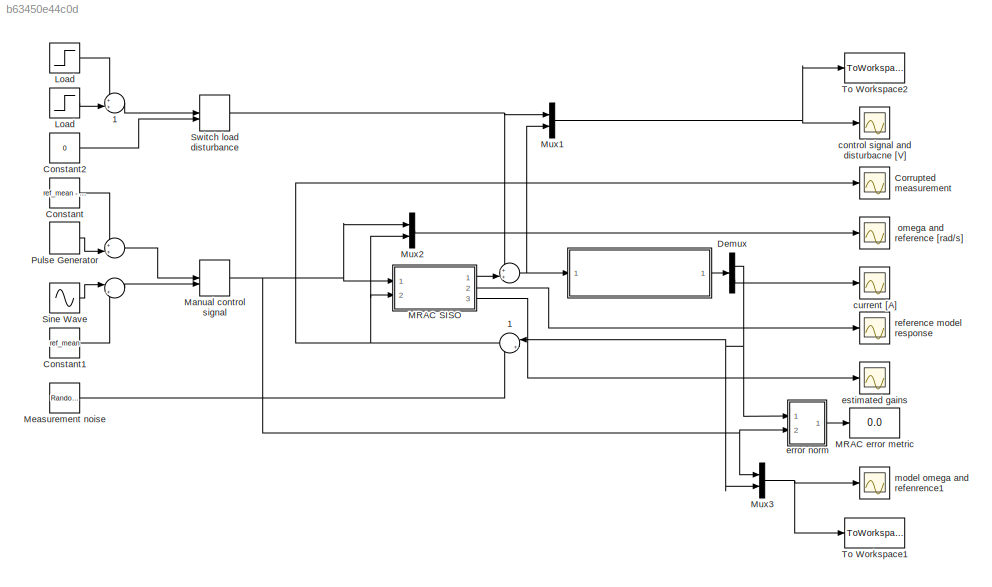
MODEL slx_b63450e44c0d
KIND model
CONFIG AbsTol = auto
CONFIG FixedStep = auto
CONFIG MaxStep = auto
CONFIG MinStep = auto
CONFIG RelTol = 1e-3
CONFIG SampleTimeConstraint = Unconstrained
CONFIG Solver = VariableStepAuto
CONFIG SolverMode = Auto
CONFIG SolverName = VariableStepAuto
CONFIG StartTime = 0.0
CONFIG StopTime = 30
BLOCK [Sum]  
  IconShape = round
  InputSameDT = off
  Inputs = ++|
  OutDataTypeStr = Inherit: Inherit via internal rule
  Ports = [2, 1]
  SaturateOnIntegerOverflow = off
BLOCK [ModelReference]    
  ModelNameDialog = rotor_model_c.slx
  ModelReferenceVersion = 1.30
  Ports = [1, 1]
  Variant = off
BLOCK [Sum]       
  IconShape = round
  InputSameDT = off
  Inputs = ++|
  OutDataTypeStr = Inherit: Inherit via internal rule
  Ports = [2, 1]
  SaturateOnIntegerOverflow = off
BLOCK [Sum]        
  IconShape = round
  InputSameDT = off
  Inputs = |++
  OutDataTypeStr = Inherit: Inherit via internal rule
  Ports = [2, 1]
  SaturateOnIntegerOverflow = off
BLOCK [Sum]        1
  IconShape = round
  InputSameDT = off
  Inputs = |++
  OutDataTypeStr = Inherit: Inherit via internal rule
  Ports = [2, 1]
  SaturateOnIntegerOverflow = off
BLOCK [Sum]       1
  IconShape = round
  InputSameDT = off
  Inputs = ++|
  OutDataTypeStr = Inherit: Inherit via internal rule
  Ports = [2, 1]
  SaturateOnIntegerOverflow = off
BLOCK [Scope]  omega and reference [rad//s]
  Ports = [1]
  ScopeSpecificationString = Simulink.scopes.TimeScopeBlockCfg('CurrentConfiguration', extmgr.ConfigurationSet(extmgr.Configuration('Core','General UI',true),extmgr.Configuration('Core','Source UI',true),extmgr.Configuration('Sources','WiredSimulink',true,'DataLoggingVariableName','ScopeData1'),extmgr.Configuration('Visuals','Time Domain',true,'SerializedDisplays',{struct('MinYLimReal','-365.30622','MaxYLimReal','3232.0204','...<+1405ch>
BLOCK [Constant] Constant
  Value = ref_mean - ref_amp
BLOCK [Constant] Constant1
  Value = ref_mean
BLOCK [Constant] Constant2
  Value = 0
BLOCK [Scope] Corrupted measurement
  Ports = [1]
  ScopeSpecificationString = C++SS(StrPVP('SaveName','ScopeData2'),StrPVP('LimitDataPoints','on'),StrPVP('DataFormat','Array'),StrPVP('Decimation','1'),StrPVP('BlockParamSampleInput','off'))
BLOCK [Demux] Demux
  DisplayOption = bar
  Outputs = 2
  Ports = [1, 2]
BLOCK [Step] Load
  After = -load_amp
  SampleTime = 0
  Time = load_finish
BLOCK [Step] Load 
  After = load_amp
  SampleTime = 0
  Time = load_start
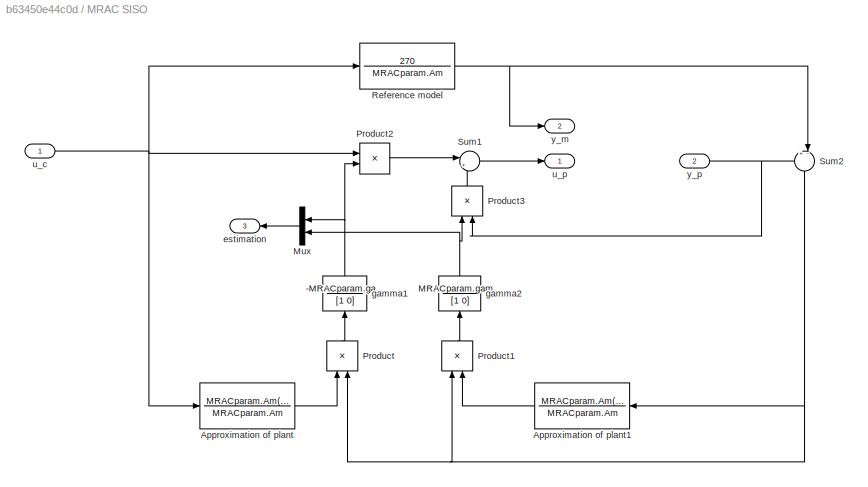
BLOCK [SubSystem] MRAC SISO
  Ports = [2, 3]
  RequestExecContextInheritance = off
  Variant = off
BLOCK [TransferFcn] MRAC SISO/ gamma2
  Denominator = [1 0]
  Numerator = MRACparam.gamma(2)
BLOCK [TransferFcn] MRAC SISO/Approximation of plant
  Denominator = MRACparam.Am
  Numerator = MRACparam.Am(2:end)
BLOCK [TransferFcn] MRAC SISO/Approximation of plant1
  Denominator = MRACparam.Am
  Numerator = MRACparam.Am(2:end)
BLOCK [Mux] MRAC SISO/Mux
  DisplayOption = bar
  Inputs = 2
  Ports = [2, 1]
BLOCK [Product] MRAC SISO/Product
  InputSameDT = off
  OutDataTypeStr = Inherit: Inherit via internal rule
  Ports = [2, 1]
  RndMeth = Floor
  SaturateOnIntegerOverflow = off
BLOCK [Product] MRAC SISO/Product1
  InputSameDT = off
  OutDataTypeStr = Inherit: Inherit via internal rule
  Ports = [2, 1]
  RndMeth = Floor
  SaturateOnIntegerOverflow = off
BLOCK [Product] MRAC SISO/Product2
  InputSameDT = off
  OutDataTypeStr = Inherit: Inherit via internal rule
  Ports = [2, 1]
  RndMeth = Floor
  SaturateOnIntegerOverflow = off
BLOCK [Product] MRAC SISO/Product3
  InputSameDT = off
  OutDataTypeStr = Inherit: Inherit via internal rule
  Ports = [2, 1]
  RndMeth = Floor
  SaturateOnIntegerOverflow = off
BLOCK [TransferFcn] MRAC SISO/Reference model
  Denominator = MRACparam.Am
  Numerator = 270
BLOCK [Sum] MRAC SISO/Sum1
  IconShape = round
  InputSameDT = off
  Inputs = |+-
  OutDataTypeStr = Inherit: Inherit via internal rule
  Ports = [2, 1]
  SaturateOnIntegerOverflow = off
BLOCK [Sum] MRAC SISO/Sum2
  IconShape = round
  InputSameDT = off
  Inputs = +-|
  OutDataTypeStr = Inherit: Inherit via internal rule
  Ports = [2, 1]
  SaturateOnIntegerOverflow = off
BLOCK [Outport] MRAC SISO/estimation
  IconDisplay = Port number
  Port = 3
BLOCK [TransferFcn] MRAC SISO/gamma1
  Denominator = [1 0]
  Numerator = -MRACparam.gamma(1)
BLOCK [Inport] MRAC SISO/u_c
  IconDisplay = Port number
BLOCK [Outport] MRAC SISO/u_p
  IconDisplay = Port number
BLOCK [Outport] MRAC SISO/y_m
  IconDisplay = Port number
  Port = 2
BLOCK [Inport] MRAC SISO/y_p
  IconDisplay = Port number
  Port = 2
BLOCK [Display] MRAC error metric
  Decimation = 1
  Ports = [1]
BLOCK [ManualSwitch] Manual control signal
BLOCK [RandomNumber] Measurement noise
  SampleTime = rotor_h
  Variance = measurement_variance
BLOCK [Mux] Mux1
  DisplayOption = bar
  Inputs = 2
  Ports = [2, 1]
BLOCK [Mux] Mux2
  DisplayOption = bar
  Inputs = 2
  Ports = [2, 1]
BLOCK [Mux] Mux3
  DisplayOption = bar
  Inputs = 2
  Ports = [2, 1]
BLOCK [DiscretePulseGenerator] Pulse Generator
  Amplitude = ref_amp*2
  Period = pulse_period
  Ports = [0, 1]
  PulseType = Time based
  PulseWidth = 50
BLOCK [Sin] Sine Wave
  Amplitude = 200
  Frequency = sinusoid_frequency
  Ports = [0, 1]
  SampleTime = 0
BLOCK [ManualSwitch] Switch load disturbance
  CurrentSetting = 0
BLOCK [ToWorkspace] To Workspace1
  FixptAsFi = on
  MaxDataPoints = inf
  Ports = [1]
  SampleTime = -1
  Save2DSignal = 3-D array (concatenate along third dimension)
  SaveFormat = Timeseries
  VariableName = omegaref
BLOCK [ToWorkspace] To Workspace2
  FixptAsFi = on
  MaxDataPoints = inf
  Ports = [1]
  SampleTime = -1
  Save2DSignal = 3-D array (concatenate along third dimension)
  SaveFormat = Timeseries
  VariableName = controlsig
BLOCK [Scope] control signal and disturbacne  [V]
  Ports = [1]
  ScopeSpecificationString = C++SS(StrPVP('SaveName','ScopeData3'),StrPVP('LimitDataPoints','on'),StrPVP('DataFormat','Array'),StrPVP('Decimation','1'),StrPVP('BlockParamSampleInput','off'))
BLOCK [Scope] current [A]   
  Ports = [1]
  ScopeSpecificationString = Simulink.scopes.TimeScopeBlockCfg('CurrentConfiguration', extmgr.ConfigurationSet(extmgr.Configuration('Core','General UI',true),extmgr.Configuration('Core','Source UI',true),extmgr.Configuration('Sources','WiredSimulink',true,'DataLoggingVariableName','ScopeData4','DataLoggingLimitDataPoints',true,'DataLoggingSaveFormat','Array','DataLoggingDecimation','1','DataLoggingDecimateData',true),extmgr.C...<+1489ch>
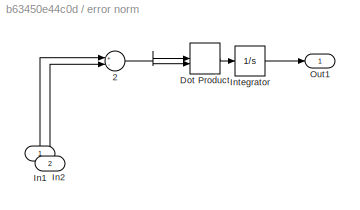
BLOCK [SubSystem] error norm
  Ports = [2, 1]
  RequestExecContextInheritance = off
  Variant = off
BLOCK [Sum] error norm/      2
  InputSameDT = off
  Inputs = +-
  OutDataTypeStr = Inherit: Inherit via internal rule
  Ports = [2, 1]
  SaturateOnIntegerOverflow = off
BLOCK [DotProduct] error norm/Dot Product
  OutDataTypeStr = Inherit: Inherit via internal rule
BLOCK [Inport] error norm/In1
  IconDisplay = Port number
BLOCK [Inport] error norm/In2
  IconDisplay = Port number
  Port = 2
BLOCK [Integrator] error norm/Integrator
  Ports = [1, 1]
BLOCK [Outport] error norm/Out1
  IconDisplay = Port number
BLOCK [Scope] estimated gains
  Ports = [1]
  ScopeSpecificationString = Simulink.scopes.TimeScopeBlockCfg('CurrentConfiguration', extmgr.ConfigurationSet(extmgr.Configuration('Core','General UI',true),extmgr.Configuration('Core','Source UI',true),extmgr.Configuration('Sources','WiredSimulink',true,'DataLoggingVariableName','ScopeData1'),extmgr.Configuration('Visuals','Time Domain',true,'SerializedDisplays',{struct('MinYLimReal','-0.00032','MaxYLimReal','0.00285','YLab...<+1388ch>
BLOCK [Scope] model omega and refenrence1
  Ports = [1]
  ScopeSpecificationString = C++SS(StrPVP('SaveName','ScopeData5'),StrPVP('LimitDataPoints','on'),StrPVP('DataFormat','Array'),StrPVP('Decimation','1'),StrPVP('BlockParamSampleInput','off'))
BLOCK [Scope] reference model response
  Ports = [1]
  ScopeSpecificationString = Simulink.scopes.TimeScopeBlockCfg('CurrentConfiguration', extmgr.ConfigurationSet(extmgr.Configuration('Core','General UI',true),extmgr.Configuration('Core','Source UI',true),extmgr.Configuration('Sources','WiredSimulink',true,'DataLoggingVariableName','ScopeData6'),extmgr.Configuration('Visuals','Time Domain',true,'SerializedDisplays',{struct('MinYLimReal','-124.97359','MaxYLimReal','1124.76231',...<+1388ch>
NET        1:1 -> Corrupted measurement:1, MRAC SISO:2, Mux2:2
LINE        :1 -> Manual control signal:2
LINE       1:1 -> Switch load disturbance:1
LINE       :1 -> Manual control signal:1
LINE    :1 -> Demux:1
NET  :1 ->    :1, Mux1:2
LINE Constant1:1 ->        :2
LINE Constant2:1 -> Switch load disturbance:2
LINE Constant:1 ->       :1
NET Demux:1 ->        1:1, Mux3:2, error norm:1
LINE Demux:2 -> current [A]   :1
LINE Load :1 ->       1:1
LINE Load:1 ->       1:2
NET MRAC SISO/ gamma2:1 -> MRAC SISO/Mux:2, MRAC SISO/Product3:1
LINE MRAC SISO/Approximation of plant1:1 -> MRAC SISO/Product1:2
LINE MRAC SISO/Approximation of plant:1 -> MRAC SISO/Product:1
LINE MRAC SISO/Mux:1 -> MRAC SISO/estimation:1
LINE MRAC SISO/Product1:1 -> MRAC SISO/ gamma2:1
LINE MRAC SISO/Product2:1 -> MRAC SISO/Sum1:1
LINE MRAC SISO/Product3:1 -> MRAC SISO/Sum1:2
LINE MRAC SISO/Product:1 -> MRAC SISO/gamma1:1
NET MRAC SISO/Reference model:1 -> MRAC SISO/Sum2:2, MRAC SISO/y_m:1
LINE MRAC SISO/Sum1:1 -> MRAC SISO/u_p:1
NET MRAC SISO/Sum2:1 -> MRAC SISO/Approximation of plant1:1, MRAC SISO/Product1:1, MRAC SISO/Product:2
NET MRAC SISO/gamma1:1 -> MRAC SISO/Mux:1, MRAC SISO/Product2:2
NET MRAC SISO/u_c:1 -> MRAC SISO/Approximation of plant:1, MRAC SISO/Product2:1, MRAC SISO/Reference model:1
NET MRAC SISO/y_p:1 -> MRAC SISO/Product3:2, MRAC SISO/Sum2:1
LINE MRAC SISO:1 ->  :2
LINE MRAC SISO:2 -> reference model response:1
LINE MRAC SISO:3 -> estimated gains:1
NET Manual control signal:1 -> MRAC SISO:1, Mux2:1, Mux3:1, error norm:2
LINE Measurement noise:1 ->        1:2
NET Mux1:1 -> To Workspace2:1, control signal and disturbacne  [V]:1
LINE Mux2:1 ->  omega and reference [rad//s]:1
NET Mux3:1 -> To Workspace1:1, model omega and refenrence1:1
LINE Pulse Generator:1 ->       :2
LINE Sine Wave:1 ->        :1
NET Switch load disturbance:1 ->  :1, Mux1:1
NET error norm/      2:1 -> error norm/Dot Product:1, error norm/Dot Product:2
LINE error norm/Dot Product:1 -> error norm/Integrator:1
LINE error norm/In1:1 -> error norm/      2:1
LINE error norm/In2:1 -> error norm/      2:2
LINE error norm/Integrator:1 -> error norm/Out1:1
LINE error norm:1 -> MRAC error metric:1
note: NET lines group one-source signal fan-out (src -> all destinations, sorted); 1:1 wires keep LINE
